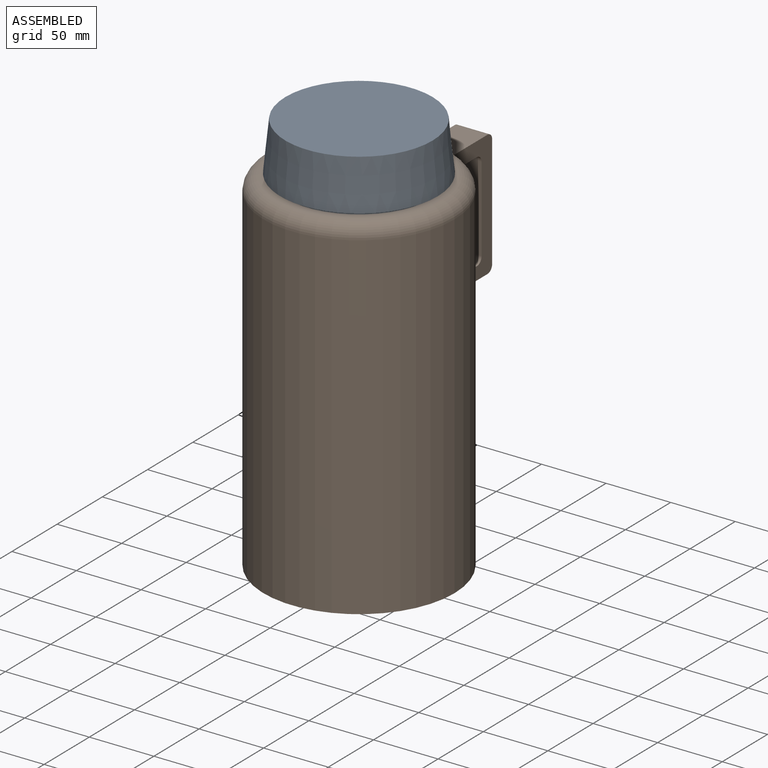
[diagram: assembled view]
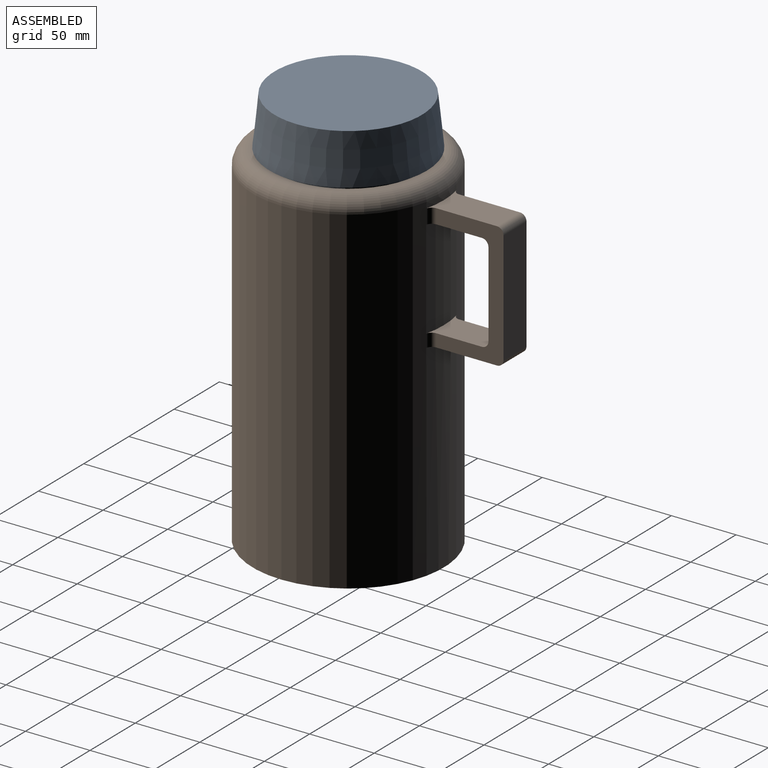
[diagram: assembled view, second angle]
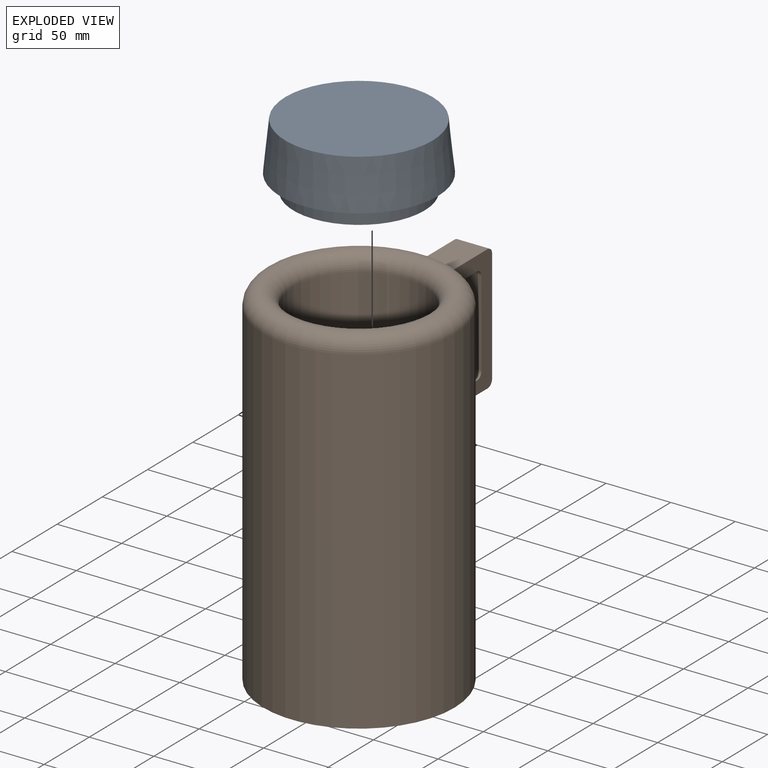
[diagram: exploded view]
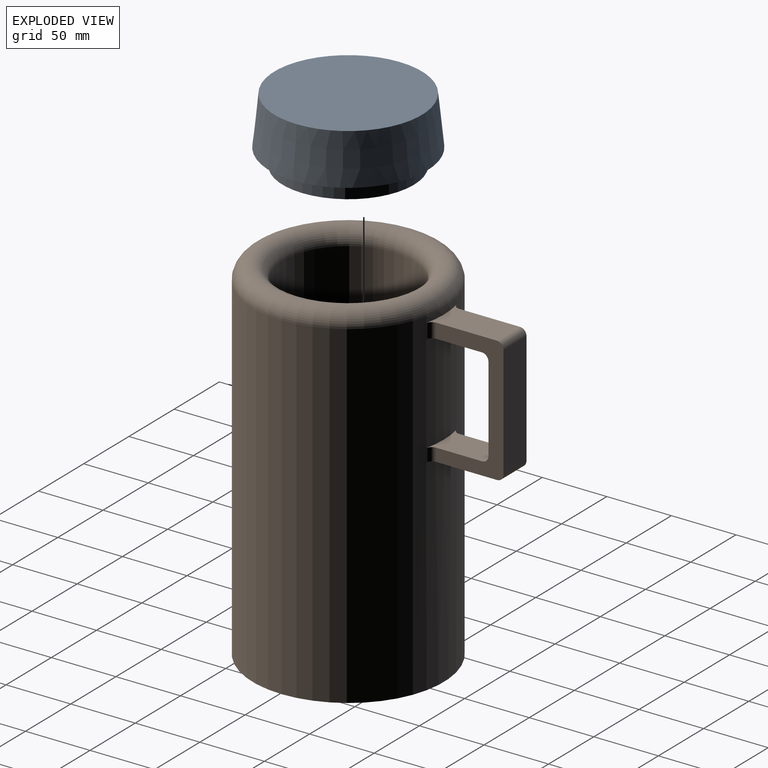
[diagram: exploded view, second angle]
ASSEMBLY  parts=2 mates=2
PART A: 5 faces, bbox 121.9x121.9x50.6 mm
  f0: plane 101.6x101.6mm, normal (0,0,-1), area 8107.3mm2, adj f4
  f1: plane 114.03x114.03mm, normal (0,0,1), area 10212.7mm2, adj f2
  f2: cone r=60.96mm half-angle=5.9deg, axis (0,0,-1), area 14121.1mm2, adj f1,f3
  f3: plane 121.92x121.92mm, normal (0,0,-1), area 3567.2mm2, adj f2,f4
  f4: cylinder r=50.8mm len=101.6mm, axis (0,0,1), area 4053.7mm2, adj f0,f3
PART B: 25 faces, bbox 160.1x209.1x273.2 mm
  f0: cylinder r=73.96mm len=261.59mm, axis (0,0,1), area 120851.7mm2, adj f3,f4,f7,f9,f10,f12,f13,f14
  f1: plane 101.6x101.6mm, normal (0,0,1), area 8107.3mm2, adj f2
  f2: cylinder r=50.8mm len=254mm, axis (0,0,1), area 81073.2mm2, adj f1,f3
  f3: torus R=62.38mm, axis (0,0,1), area 14251.4mm2, adj f0,f2
  f4: plane 147.92x147.92mm, normal (0,0,-1), area 17185.2mm2, adj f0
  f5: plane 97.47x52.08mm, normal (1,0,0), area 1996.5mm2, adj f7,f8,f9,f10,f11,f12,f13,f15
  f6: plane 97.47x52.08mm, normal (-1,0,0), area 1996.5mm2, adj f7,f8,f9,f10,f11,f12,f14,f16
  f7: plane 40.28x33.27mm, normal (0,0,-1), area 991mm2, adj f0,f5,f6,f15,f16,f17
  f8: plane 66.04x25.4mm, normal (0,-1,0), area 1677.4mm2, adj f5,f6,f17,f18
  f9: plane 40.28x33.27mm, normal (0,0,1), area 991mm2, adj f0,f5,f6,f13,f14,f18
  f10: plane 51.95x33.27mm, normal (0,0,-1), area 1287.2mm2, adj f0,f5,f6,f13,f14,f19
  f11: plane 87.31x25.4mm, normal (0,1,0), area 2217.7mm2, adj f5,f6,f19,f20
  f12: plane 51.95x33.27mm, normal (0,0,1), area 1287.2mm2, adj f0,f5,f6,f15,f16,f20
  f13: cylinder r=5.08mm len=9.97mm, axis (0,0,1), area 68.1mm2, adj f0,f5,f9,f10
  f14: cylinder r=5.08mm len=9.97mm, axis (0,0,1), area 68.1mm2, adj f0,f6,f9,f10
  f15: cylinder r=5.08mm len=11.3mm, axis (0,0,1), area 77.1mm2, adj f0,f5,f7,f12
  f16: cylinder r=5.08mm len=11.3mm, axis (0,0,1), area 77.1mm2, adj f0,f6,f7,f12
  f17: cylinder r=5.08mm len=25.4mm, axis (1,0,0), area 202.7mm2, adj f5,f6,f7,f8
  f18: cylinder r=5.08mm len=25.4mm, axis (1,0,0), area 202.7mm2, adj f5,f6,f8,f9
  f19: cylinder r=5.08mm len=25.4mm, axis (-1,0,0), area 202.7mm2, adj f5,f6,f10,f11
  f20: cylinder r=5.08mm len=25.4mm, axis (-1,0,0), area 202.7mm2, adj f5,f6,f11,f12
  f21: cylinder r=64.98mm len=253.56mm, axis (0,0,1), area 103532.2mm2, adj f22,f24
  f22: torus R=62.44mm, axis (0,0,1), area 3130.8mm2, adj f21,f23
  f23: cylinder r=59.9mm len=253.56mm, axis (0,0,1), area 95438.8mm2, adj f22,f24
  f24: plane 129.97x129.97mm, normal (0,0,1), area 1993.1mm2, adj f21,f23
PLACE A t=(-52.12,8.43,248.3)mm
PLACE B t=(-52.12,8.43,-5.7)mm fixed
MATE slider A.f2 <-> B.f0  axis (0,0,-1) through (-52.12,8.43,248.3)mm
MATE fastened A.f2 <-> B.f0  axis (0,0,-1) through (-52.12,8.43,248.3)mm
